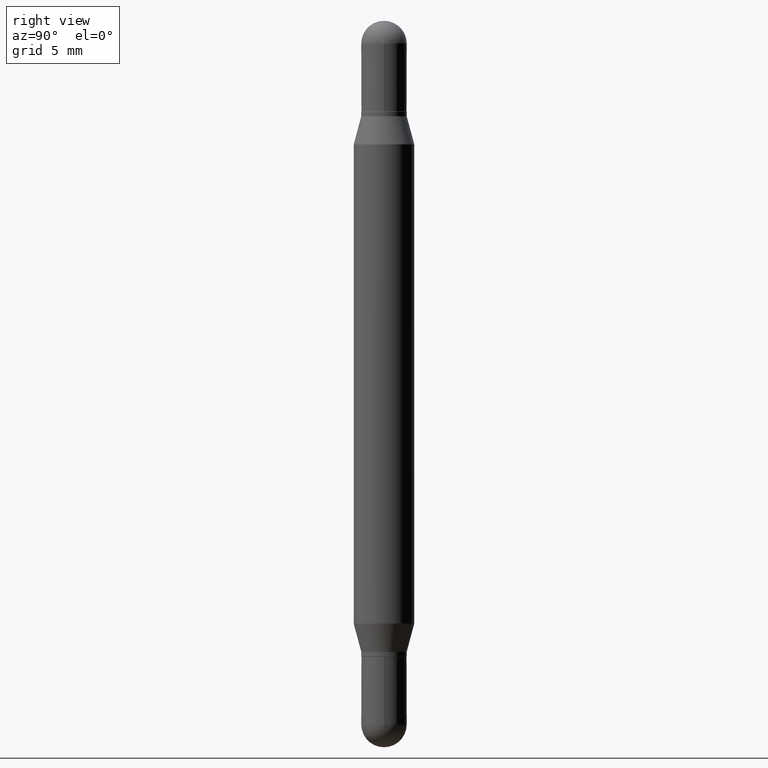
[diagram: clean part render]
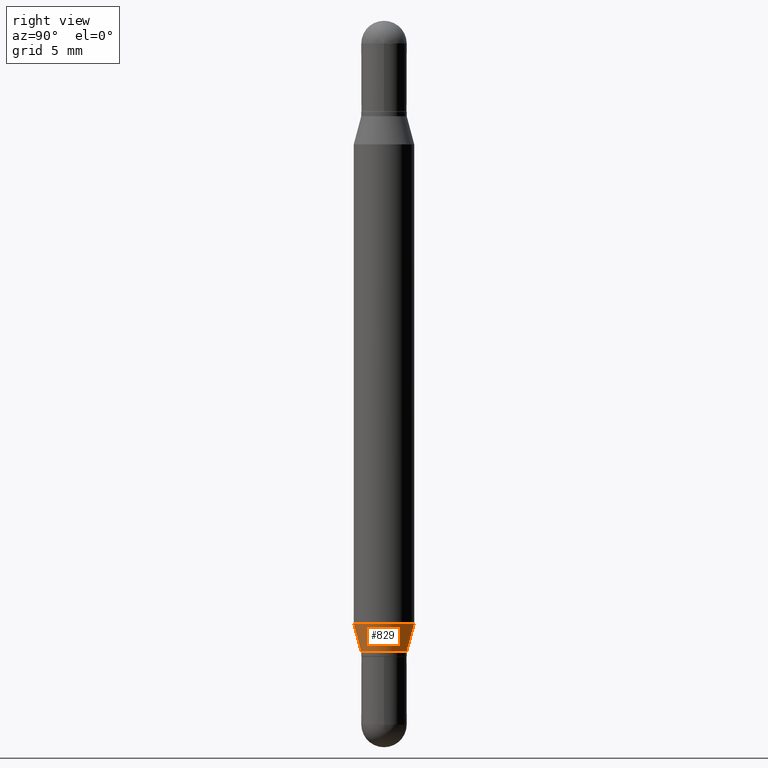
[diagram: same view with one face highlighted and labeled with its STEP entity id]
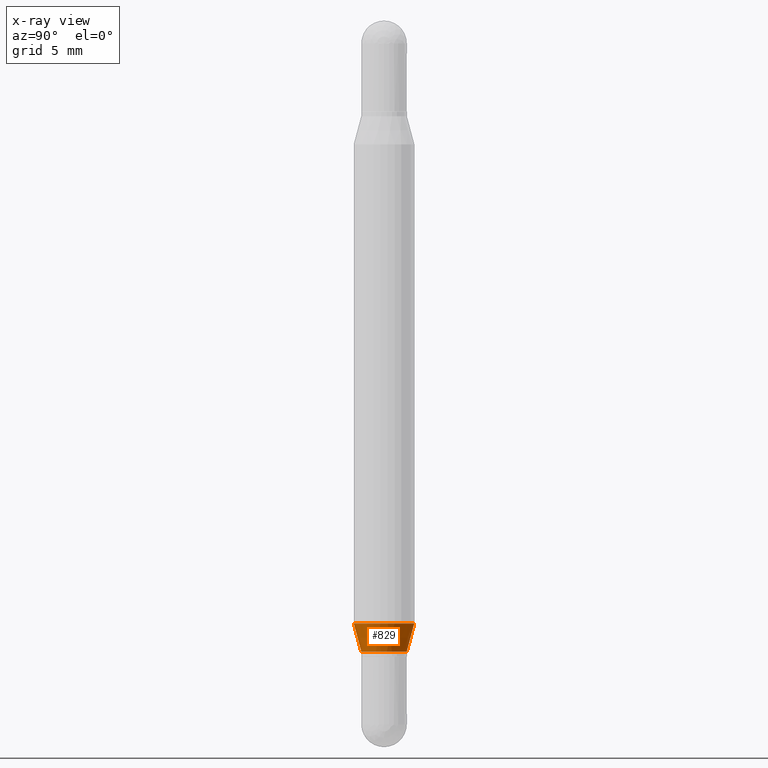
[diagram: x-ray of the same camera — body ghosted, the highlighted face saturated]
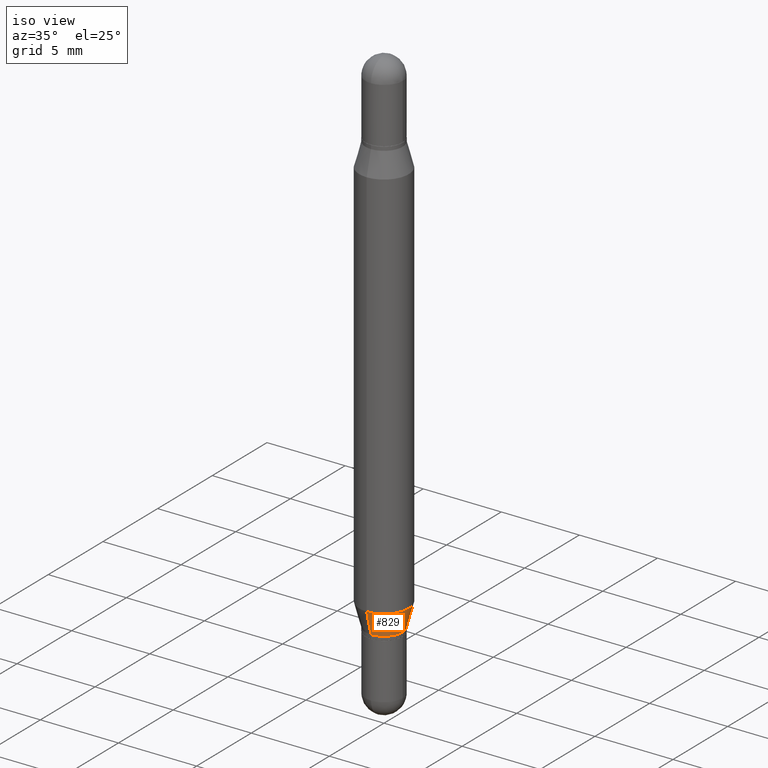
[diagram: same view with one face highlighted and labeled with its STEP entity id]
A machine part, right view. The second image highlights one B-rep face of the part: STEP entity #829.
The next image is the same camera in x-ray: the body ghosted, the highlighted face saturated — about 0% of this face is hidden behind the body in this view.
A second angle (iso view) of the same face is appended — the face is thin or edge-on in the first view.
In plain terms, the highlighted conical surface has half-angle 15 deg.
Its self-contained STEP definition (entity closure, byte-faithful):
#15 = EDGE_LOOP ( 'NONE', ( #858, #855, #762, #610 ) ) ;
#95 = EDGE_CURVE ( 'NONE', #657, #498, #1041, .T. ) ;
#120 = VECTOR ( 'NONE', #170, 39.37007874015748854 ) ;
#170 = DIRECTION ( 'NONE',  ( 1.839019923739598738E-15, 0.2588190451025247363, 0.9659258262890673130 ) ) ;
#198 = CARTESIAN_POINT ( 'NONE',  ( 4.287811248607390144E-16, 0.06249999999999565625, -1.244780007401924848 ) ) ;
#237 = FACE_OUTER_BOUND ( 'NONE', #15, .T. ) ;
#244 = CARTESIAN_POINT ( 'NONE',  ( 3.186629200712814485E-29, -4.549137622242072100E-15, -1.303000000000000380 ) ) ;
#252 = DIRECTION ( 'NONE',  ( -6.982962677686265133E-15, -1.000000000000000000, 5.824835807386533174E-15 ) ) ;
#254 = EDGE_CURVE ( 'NONE', #498, #465, #304, .T. ) ;
#304 = LINE ( 'NONE', #311, #120 ) ;
#311 = CARTESIAN_POINT ( 'NONE',  ( 3.332445430715162048E-16, 0.04689999999999509145, -1.303000000000000602 ) ) ;
#345 = CONICAL_SURFACE ( 'NONE', #429, 0.04689999999999964336, 0.2617993877991500740 ) ;
#412 = DIRECTION ( 'NONE',  ( -6.982962677686265922E-15, -1.000000000000000000, 4.370956789862821150E-15 ) ) ;
#429 = AXIS2_PLACEMENT_3D ( 'NONE', #244, #594, #252 ) ;
#456 = DIRECTION ( 'NONE',  ( -1.807323732225328562E-15, -0.2588190451025179639, 0.9659258262890690894 ) ) ;
#464 = CIRCLE ( 'NONE', #1117, 0.06250000000000000000 ) ;
#465 = VERTEX_POINT ( 'NONE', #198 ) ;
#498 = VERTEX_POINT ( 'NONE', #783 ) ;
#508 = EDGE_CURVE ( 'NONE', #657, #755, #527, .T. ) ;
#527 = LINE ( 'NONE', #979, #774 ) ;
#539 = CARTESIAN_POINT ( 'NONE',  ( 3.044245832732528794E-29, -4.345875336214013130E-15, -1.244780007401924626 ) ) ;
#580 = AXIS2_PLACEMENT_3D ( 'NONE', #747, #1105, #581 ) ;
#581 = DIRECTION ( 'NONE',  ( -6.982962677686265133E-15, -1.000000000000000000, 5.824835807386533174E-15 ) ) ;
#594 = DIRECTION ( 'NONE',  ( -2.445609517047439160E-29, 3.491279832879563417E-15, 1.000000000000000000 ) ) ;
#610 = ORIENTED_EDGE ( 'NONE', *, *, #508, .F. ) ;
#657 = VERTEX_POINT ( 'NONE', #801 ) ;
#737 = CARTESIAN_POINT ( 'NONE',  ( -4.364351673553611504E-16, -0.06250000000000434375, -1.244780007401924404 ) ) ;
#747 = CARTESIAN_POINT ( 'NONE',  ( 3.186629200712814485E-29, -4.549137622242072100E-15, -1.303000000000000380 ) ) ;
#755 = VERTEX_POINT ( 'NONE', #737 ) ;
#762 = ORIENTED_EDGE ( 'NONE', *, *, #895, .F. ) ;
#774 = VECTOR ( 'NONE', #456, 39.37007874015748854 ) ;
#783 = CARTESIAN_POINT ( 'NONE',  ( 3.332445430715164513E-16, 0.04689999999999509145, -1.303000000000000602 ) ) ;
#801 = CARTESIAN_POINT ( 'NONE',  ( -3.275009495834514884E-16, -0.04690000000000419528, -1.302999999999999936 ) ) ;
#829 = ADVANCED_FACE ( 'NONE', ( #237 ), #345, .T. ) ;
#845 = DIRECTION ( 'NONE',  ( -2.445609517047439160E-29, 3.491279832879563417E-15, 1.000000000000000000 ) ) ;
#855 = ORIENTED_EDGE ( 'NONE', *, *, #254, .T. ) ;
#858 = ORIENTED_EDGE ( 'NONE', *, *, #95, .T. ) ;
#895 = EDGE_CURVE ( 'NONE', #755, #465, #464, .T. ) ;
#979 = CARTESIAN_POINT ( 'NONE',  ( -3.275009495834514884E-16, -0.04690000000000419528, -1.302999999999999936 ) ) ;
#1041 = CIRCLE ( 'NONE', #580, 0.04689999999999964336 ) ;
#1105 = DIRECTION ( 'NONE',  ( -2.445609517047439160E-29, 3.491279832879563417E-15, 1.000000000000000000 ) ) ;
#1117 = AXIS2_PLACEMENT_3D ( 'NONE', #539, #845, #412 ) ;